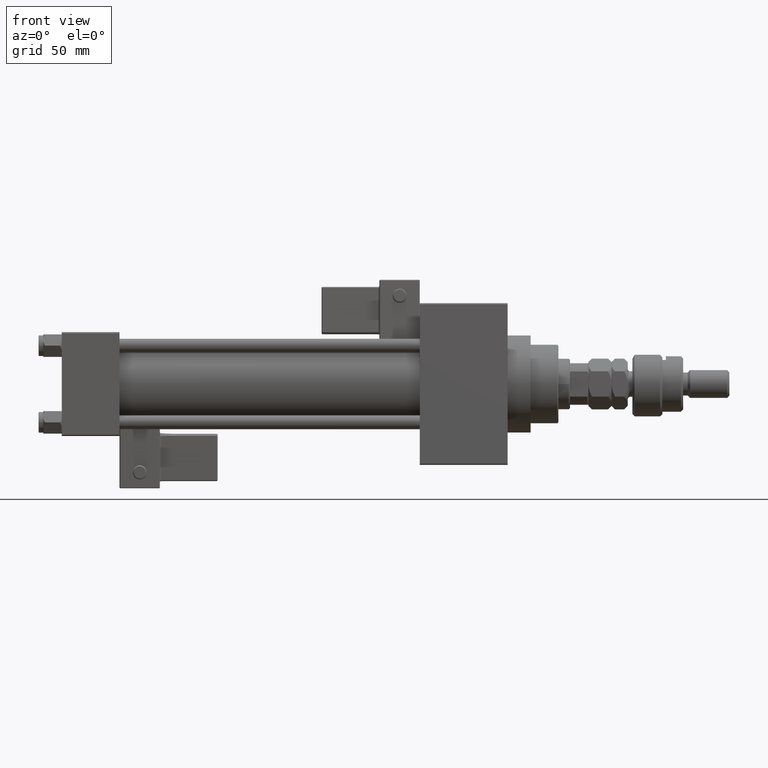
[diagram: clean part render]
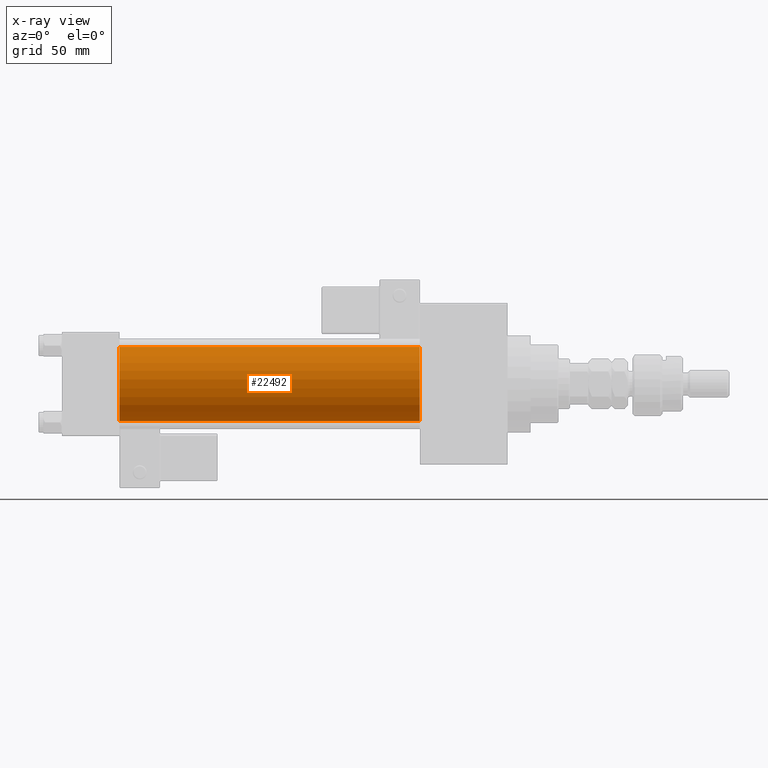
[diagram: x-ray — body ghosted, one internal face saturated and labeled with its STEP entity id]
A machine part, front view, then the same camera in x-ray: the body is ghosted and one INTERNAL B-rep face — a face not visible from any outside direction — is saturated and labeled: STEP entity #22492.
In plain terms, the highlighted cylindrical surface (partial cylindrical patch) has radius 16 mm, axis along (-1, -0, -0).
Its self-contained STEP definition (entity closure, byte-faithful):
#273 = CYLINDRICAL_SURFACE ( 'NONE', #15815, 16.00000000000000000 ) ;
#1227 = EDGE_CURVE ( 'NONE', #53092, #19246, #23623, .T. ) ;
#1893 = AXIS2_PLACEMENT_3D ( 'NONE', #16617, #33345, #50075 ) ;
#3494 = CARTESIAN_POINT ( 'NONE',  ( 25.00000000000000000, -6.426503353294456087E-16, -16.00000000000000000 ) ) ;
#4376 = DIRECTION ( 'NONE',  ( -1.000000000000000000, -0.000000000000000000, -0.000000000000000000 ) ) ;
#5221 = AXIS2_PLACEMENT_3D ( 'NONE', #29451, #25349, #42078 ) ;
#8042 = LINE ( 'NONE', #49462, #36132 ) ;
#8473 = DIRECTION ( 'NONE',  ( 0.000000000000000000, 0.000000000000000000, 1.000000000000000000 ) ) ;
#12381 = CIRCLE ( 'NONE', #1893, 16.00000000000000000 ) ;
#12680 = DIRECTION ( 'NONE',  ( -1.000000000000000000, -0.000000000000000000, -0.000000000000000000 ) ) ;
#14373 = ORIENTED_EDGE ( 'NONE', *, *, #24542, .F. ) ;
#14939 = EDGE_CURVE ( 'NONE', #53092, #48043, #37820, .T. ) ;
#15815 = AXIS2_PLACEMENT_3D ( 'NONE', #41938, #4376, #8473 ) ;
#16617 = CARTESIAN_POINT ( 'NONE',  ( 25.00000000000000000, -2.602085213965210642E-15, 0.000000000000000000 ) ) ;
#19246 = VERTEX_POINT ( 'NONE', #40475 ) ;
#22492 = ADVANCED_FACE ( 'NONE', ( #30669 ), #273, .F. ) ;
#23623 = CIRCLE ( 'NONE', #5221, 16.00000000000000000 ) ;
#24542 = EDGE_CURVE ( 'NONE', #48043, #52387, #12381, .T. ) ;
#25349 = DIRECTION ( 'NONE',  ( 1.000000000000000000, 0.000000000000000000, 0.000000000000000000 ) ) ;
#26032 = CARTESIAN_POINT ( 'NONE',  ( 25.00000000000000000, -2.602085213965210642E-15, 16.00000000000000000 ) ) ;
#29451 = CARTESIAN_POINT ( 'NONE',  ( 155.0000000000000000, -2.602085213965210642E-15, 0.000000000000000000 ) ) ;
#29460 = EDGE_CURVE ( 'NONE', #19246, #52387, #8042, .T. ) ;
#30669 = FACE_OUTER_BOUND ( 'NONE', #43269, .T. ) ;
#32175 = ORIENTED_EDGE ( 'NONE', *, *, #14939, .F. ) ;
#33345 = DIRECTION ( 'NONE',  ( 1.000000000000000000, 0.000000000000000000, 0.000000000000000000 ) ) ;
#33433 = DIRECTION ( 'NONE',  ( -1.000000000000000000, -0.000000000000000000, -0.000000000000000000 ) ) ;
#36132 = VECTOR ( 'NONE', #12680, 1000.000000000000000 ) ;
#37820 = LINE ( 'NONE', #38094, #51377 ) ;
#38094 = CARTESIAN_POINT ( 'NONE',  ( 155.0000000000000000, -2.602085213965210642E-15, 16.00000000000000000 ) ) ;
#40475 = CARTESIAN_POINT ( 'NONE',  ( 155.0000000000000000, -6.426503353294456087E-16, -16.00000000000000000 ) ) ;
#41938 = CARTESIAN_POINT ( 'NONE',  ( 155.0000000000000000, -2.602085213965210642E-15, 0.000000000000000000 ) ) ;
#42078 = DIRECTION ( 'NONE',  ( 0.000000000000000000, 0.000000000000000000, -1.000000000000000000 ) ) ;
#43269 = EDGE_LOOP ( 'NONE', ( #53917, #48541, #14373, #32175 ) ) ;
#47984 = CARTESIAN_POINT ( 'NONE',  ( 155.0000000000000000, -2.602085213965210642E-15, 16.00000000000000000 ) ) ;
#48043 = VERTEX_POINT ( 'NONE', #26032 ) ;
#48541 = ORIENTED_EDGE ( 'NONE', *, *, #29460, .T. ) ;
#49462 = CARTESIAN_POINT ( 'NONE',  ( 155.0000000000000000, -6.426503353294456087E-16, -16.00000000000000000 ) ) ;
#50075 = DIRECTION ( 'NONE',  ( 0.000000000000000000, 0.000000000000000000, -1.000000000000000000 ) ) ;
#51377 = VECTOR ( 'NONE', #33433, 1000.000000000000000 ) ;
#52387 = VERTEX_POINT ( 'NONE', #3494 ) ;
#53092 = VERTEX_POINT ( 'NONE', #47984 ) ;
#53917 = ORIENTED_EDGE ( 'NONE', *, *, #1227, .T. ) ;